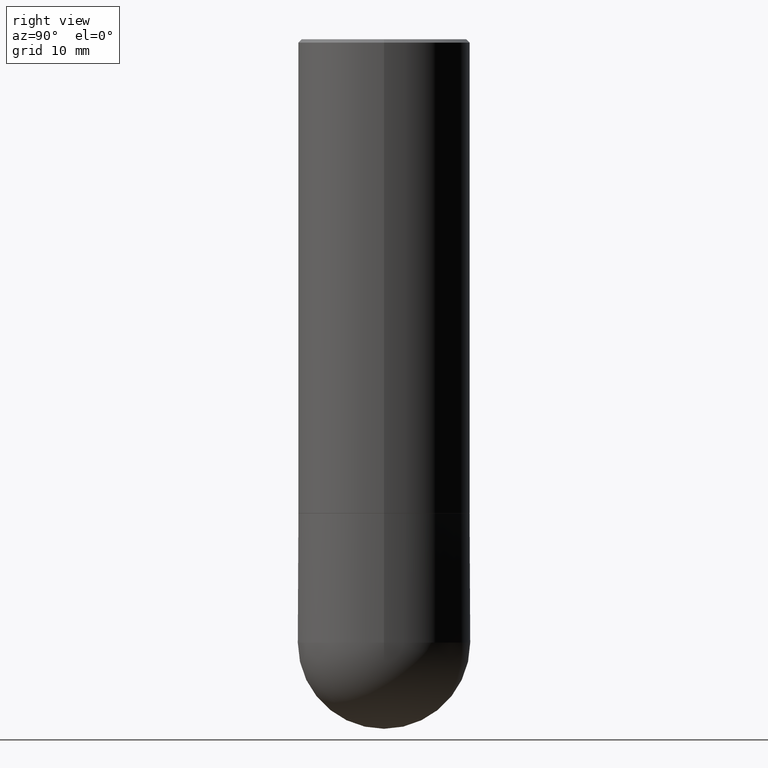
[diagram: clean part render]
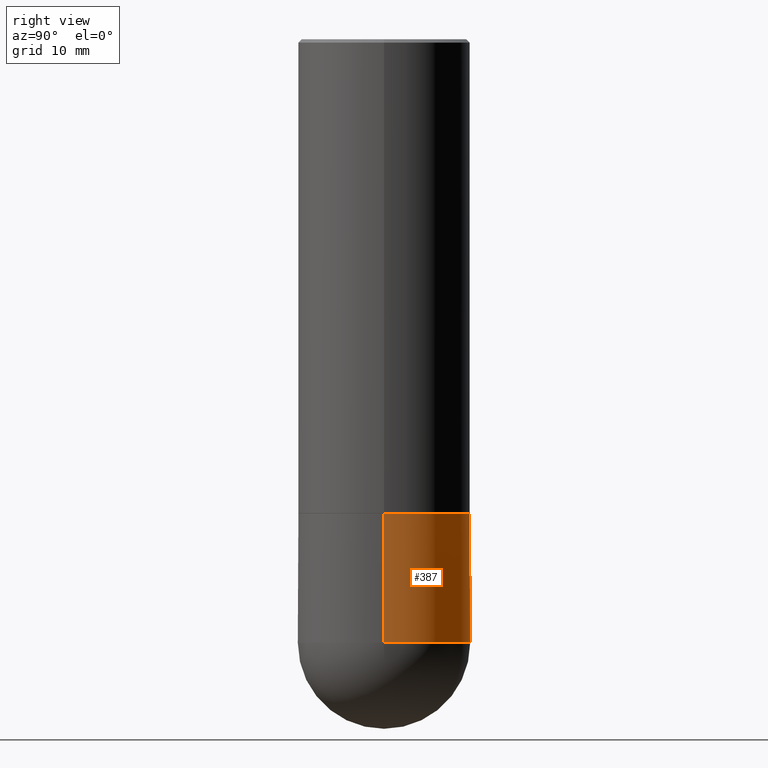
[diagram: same view with one face highlighted and labeled with its STEP entity id]
A machine part, right view. The second image highlights one B-rep face of the part: STEP entity #387.
In plain terms, the highlighted cylindrical surface (partial cylindrical patch) has radius 12.7 mm, axis along (-0, 0, 1).
Its self-contained STEP definition (entity closure, byte-faithful):
#2 = VERTEX_POINT ( 'NONE', #133 ) ;
#8 = CARTESIAN_POINT ( 'NONE',  ( 8.559140821647978089E-29, -1.222018468595101092E-14, -3.500000000000000444 ) ) ;
#10 = CARTESIAN_POINT ( 'NONE',  ( 0.5000000000000000000, -1.440236052272796769E-14, -3.500000000000000444 ) ) ;
#39 = AXIS2_PLACEMENT_3D ( 'NONE', #382, #68, #198 ) ;
#40 = AXIS2_PLACEMENT_3D ( 'NONE', #51, #253, #281 ) ;
#51 = CARTESIAN_POINT ( 'NONE',  ( 0.000000000000000000, 0.000000000000000000, 0.000000000000000000 ) ) ;
#54 = ORIENTED_EDGE ( 'NONE', *, *, #156, .T. ) ;
#68 = DIRECTION ( 'NONE',  ( -2.445468806185136597E-29, 3.491481338843145583E-15, 1.000000000000000000 ) ) ;
#73 = DIRECTION ( 'NONE',  ( 1.000000000000000000, -6.982962677686266711E-15, 0.000000000000000000 ) ) ;
#74 = CARTESIAN_POINT ( 'NONE',  ( 6.725039217009124520E-29, -9.601573681818649859E-15, -2.750000000000000000 ) ) ;
#106 = LINE ( 'NONE', #302, #386 ) ;
#108 = EDGE_CURVE ( 'NONE', #248, #113, #359, .T. ) ;
#113 = VERTEX_POINT ( 'NONE', #265 ) ;
#133 = CARTESIAN_POINT ( 'NONE',  ( -0.5000000000000000000, -7.358165505084333404E-15, -3.500000000000000444 ) ) ;
#156 = EDGE_CURVE ( 'NONE', #113, #2, #370, .T. ) ;
#184 = CARTESIAN_POINT ( 'NONE',  ( -0.5000000000000000000, -7.358165505084330249E-15, -2.750000000000000000 ) ) ;
#188 = ORIENTED_EDGE ( 'NONE', *, *, #264, .T. ) ;
#196 = VERTEX_POINT ( 'NONE', #271 ) ;
#198 = DIRECTION ( 'NONE',  ( 1.000000000000000000, -6.982962677686266711E-15, 0.000000000000000000 ) ) ;
#212 = CARTESIAN_POINT ( 'NONE',  ( 0.5000000000000000000, -3.491481338843133355E-15, 2.438088387897967896E-29 ) ) ;
#215 = FACE_OUTER_BOUND ( 'NONE', #308, .T. ) ;
#238 = EDGE_CURVE ( 'NONE', #248, #196, #266, .T. ) ;
#248 = VERTEX_POINT ( 'NONE', #10 ) ;
#249 = EDGE_CURVE ( 'NONE', #196, #341, #371, .T. ) ;
#251 = ORIENTED_EDGE ( 'NONE', *, *, #249, .F. ) ;
#252 = VECTOR ( 'NONE', #362, 39.37007874015748143 ) ;
#253 = DIRECTION ( 'NONE',  ( -2.445468806185136597E-29, 3.491481338843145583E-15, 1.000000000000000000 ) ) ;
#264 = EDGE_CURVE ( 'NONE', #2, #341, #106, .T. ) ;
#265 = CARTESIAN_POINT ( 'NONE',  ( 3.491481338843217763E-15, 0.4999999999999876765, -3.500000000000002220 ) ) ;
#266 = LINE ( 'NONE', #212, #252 ) ;
#271 = CARTESIAN_POINT ( 'NONE',  ( 0.5000000000000000000, -1.309305502066178321E-14, -2.750000000000000000 ) ) ;
#281 = DIRECTION ( 'NONE',  ( 1.000000000000000000, -6.982962677686266711E-15, 4.876176775795935793E-29 ) ) ;
#302 = CARTESIAN_POINT ( 'NONE',  ( -0.5000000000000000000, 3.552713678800500929E-15, -2.459467545127452891E-29 ) ) ;
#308 = EDGE_LOOP ( 'NONE', ( #54, #188, #251, #369, #379 ) ) ;
#325 = AXIS2_PLACEMENT_3D ( 'NONE', #74, #330, #73 ) ;
#330 = DIRECTION ( 'NONE',  ( -2.445468806185136597E-29, 3.491481338843145583E-15, 1.000000000000000000 ) ) ;
#341 = VERTEX_POINT ( 'NONE', #184 ) ;
#359 = CIRCLE ( 'NONE', #39, 0.5000000000000000000 ) ;
#362 = DIRECTION ( 'NONE',  ( -2.445468806185136877E-29, 3.491481338843145188E-15, 1.000000000000000000 ) ) ;
#366 = DIRECTION ( 'NONE',  ( -2.445468806185136877E-29, 3.491481338843145188E-15, 1.000000000000000000 ) ) ;
#369 = ORIENTED_EDGE ( 'NONE', *, *, #238, .F. ) ;
#370 = CIRCLE ( 'NONE', #407, 0.5000000000000000000 ) ;
#371 = CIRCLE ( 'NONE', #325, 0.5000000000000000000 ) ;
#372 = CYLINDRICAL_SURFACE ( 'NONE', #40, 0.5000000000000000000 ) ;
#379 = ORIENTED_EDGE ( 'NONE', *, *, #108, .T. ) ;
#382 = CARTESIAN_POINT ( 'NONE',  ( 8.559140821647978089E-29, -1.222018468595101092E-14, -3.500000000000000444 ) ) ;
#386 = VECTOR ( 'NONE', #366, 39.37007874015748143 ) ;
#387 = ADVANCED_FACE ( 'NONE', ( #215 ), #372, .T. ) ;
#393 = DIRECTION ( 'NONE',  ( -2.445468806185136597E-29, 3.491481338843145583E-15, 1.000000000000000000 ) ) ;
#399 = DIRECTION ( 'NONE',  ( 1.000000000000000000, -6.982962677686266711E-15, 0.000000000000000000 ) ) ;
#407 = AXIS2_PLACEMENT_3D ( 'NONE', #8, #393, #399 ) ;